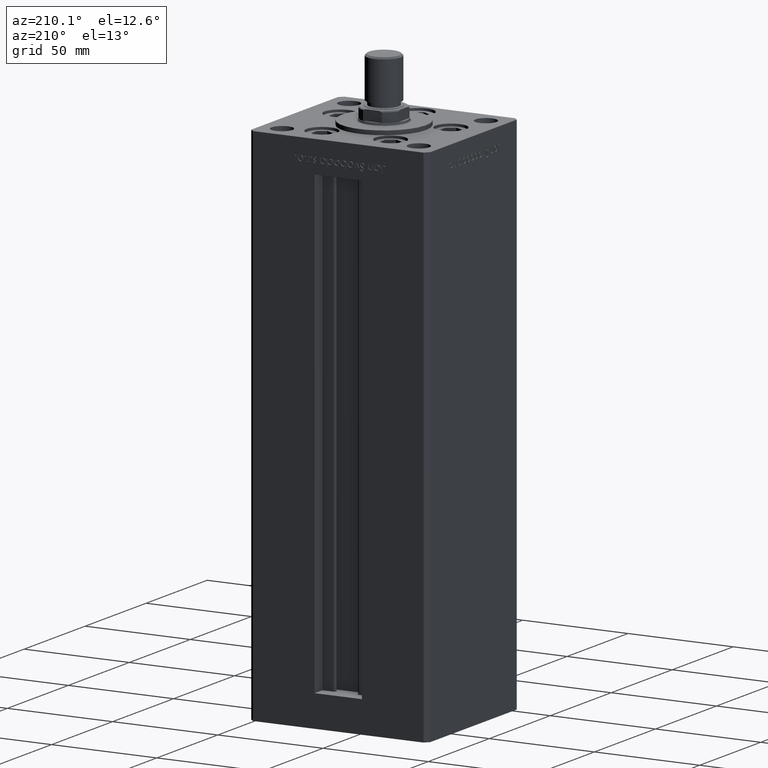
[diagram: clean part render]
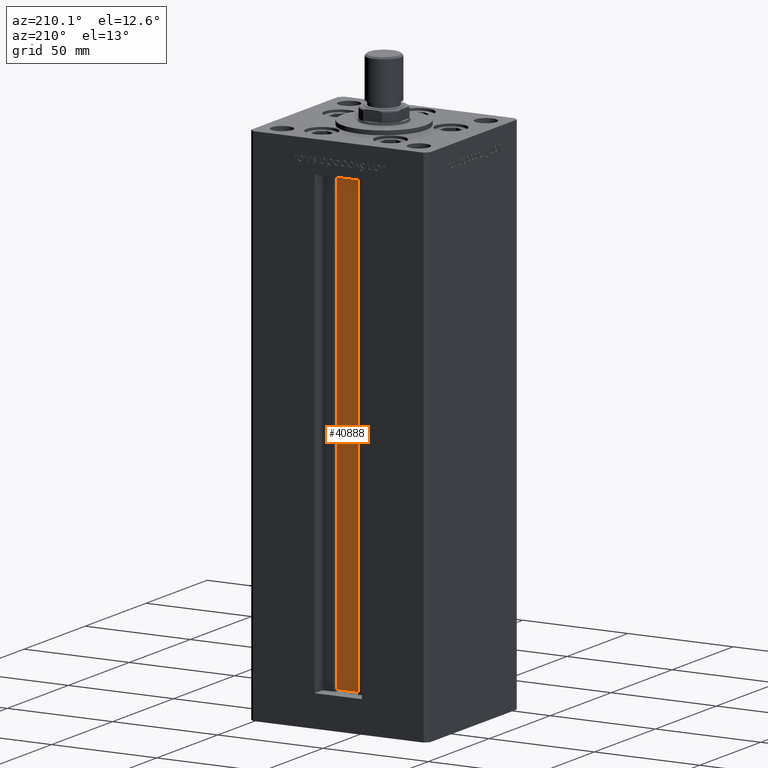
[diagram: same view with one face highlighted and labeled with its STEP entity id]
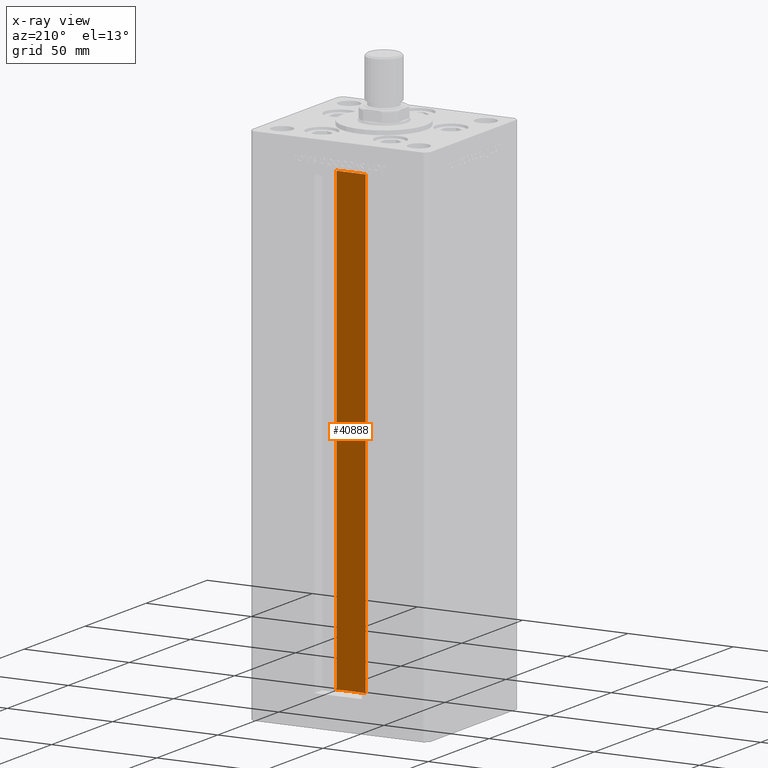
[diagram: x-ray of the same camera — body ghosted, the highlighted face saturated]
A machine part, auxiliary view. The second image highlights one B-rep face of the part: STEP entity #40888.
The next image is the same camera in x-ray: the body ghosted, the highlighted face saturated — about 0% of this face is hidden behind the body in this view.
In plain terms, the highlighted planar face has unit normal (0, -1, 0).
Its self-contained STEP definition (entity closure, byte-faithful):
#865 = VECTOR ( 'NONE', #8518, 1000.000000000000000 ) ;
#1357 = CARTESIAN_POINT ( 'NONE',  ( 6.876153656360465938, 26.99999999999986855, 0.000000000000000000 ) ) ;
#3179 = CARTESIAN_POINT ( 'NONE',  ( -6.876153656360465938, 26.99999999999986855, 218.5000000000000000 ) ) ;
#3963 = FACE_OUTER_BOUND ( 'NONE', #19468, .T. ) ;
#4275 = EDGE_CURVE ( 'NONE', #20030, #25938, #19899, .T. ) ;
#5307 = ORIENTED_EDGE ( 'NONE', *, *, #31633, .T. ) ;
#6479 = LINE ( 'NONE', #46765, #8648 ) ;
#8518 = DIRECTION ( 'NONE',  ( 1.000000000000000000, -0.000000000000000000, -0.000000000000000000 ) ) ;
#8648 = VECTOR ( 'NONE', #10730, 1000.000000000000000 ) ;
#10730 = DIRECTION ( 'NONE',  ( -0.000000000000000000, -0.000000000000000000, 1.000000000000000000 ) ) ;
#14670 = CARTESIAN_POINT ( 'NONE',  ( 0.000000000000000000, 26.99999999999986855, 218.5000000000000000 ) ) ;
#15798 = EDGE_CURVE ( 'NONE', #25938, #28716, #41710, .T. ) ;
#16096 = ORIENTED_EDGE ( 'NONE', *, *, #4275, .F. ) ;
#19468 = EDGE_LOOP ( 'NONE', ( #16096, #23081, #5307, #41195 ) ) ;
#19899 = LINE ( 'NONE', #28368, #51222 ) ;
#20030 = VERTEX_POINT ( 'NONE', #36801 ) ;
#20980 = EDGE_CURVE ( 'NONE', #51889, #20030, #44812, .T. ) ;
#21596 = DIRECTION ( 'NONE',  ( -1.000000000000000000, 0.000000000000000000, 0.000000000000000000 ) ) ;
#23081 = ORIENTED_EDGE ( 'NONE', *, *, #20980, .F. ) ;
#24365 = DIRECTION ( 'NONE',  ( 0.000000000000000000, -1.000000000000000000, -0.000000000000000000 ) ) ;
#25938 = VERTEX_POINT ( 'NONE', #46833 ) ;
#28368 = CARTESIAN_POINT ( 'NONE',  ( 6.876153656360465938, 26.99999999999986855, 0.000000000000000000 ) ) ;
#28716 = VERTEX_POINT ( 'NONE', #3179 ) ;
#30523 = CARTESIAN_POINT ( 'NONE',  ( -6.876153656360465938, 26.99999999999986855, 0.000000000000000000 ) ) ;
#31633 = EDGE_CURVE ( 'NONE', #51889, #28716, #6479, .T. ) ;
#32329 = DIRECTION ( 'NONE',  ( -0.000000000000000000, -0.000000000000000000, 1.000000000000000000 ) ) ;
#34563 = VECTOR ( 'NONE', #21596, 1000.000000000000000 ) ;
#36798 = PLANE ( 'NONE',  #51132 ) ;
#36801 = CARTESIAN_POINT ( 'NONE',  ( 6.876153656360465938, 26.99999999999986855, 0.000000000000000000 ) ) ;
#40510 = DIRECTION ( 'NONE',  ( 0.000000000000000000, 0.000000000000000000, -1.000000000000000000 ) ) ;
#40888 = ADVANCED_FACE ( 'NONE', ( #3963 ), #36798, .F. ) ;
#41195 = ORIENTED_EDGE ( 'NONE', *, *, #15798, .F. ) ;
#41710 = LINE ( 'NONE', #14670, #34563 ) ;
#44483 = CARTESIAN_POINT ( 'NONE',  ( 6.876153656360465938, 26.99999999999986855, 0.000000000000000000 ) ) ;
#44812 = LINE ( 'NONE', #1357, #865 ) ;
#46765 = CARTESIAN_POINT ( 'NONE',  ( -6.876153656360465938, 26.99999999999986855, 0.000000000000000000 ) ) ;
#46833 = CARTESIAN_POINT ( 'NONE',  ( 6.876153656360465938, 26.99999999999986855, 218.5000000000000000 ) ) ;
#51132 = AXIS2_PLACEMENT_3D ( 'NONE', #44483, #24365, #40510 ) ;
#51222 = VECTOR ( 'NONE', #32329, 1000.000000000000000 ) ;
#51889 = VERTEX_POINT ( 'NONE', #30523 ) ;